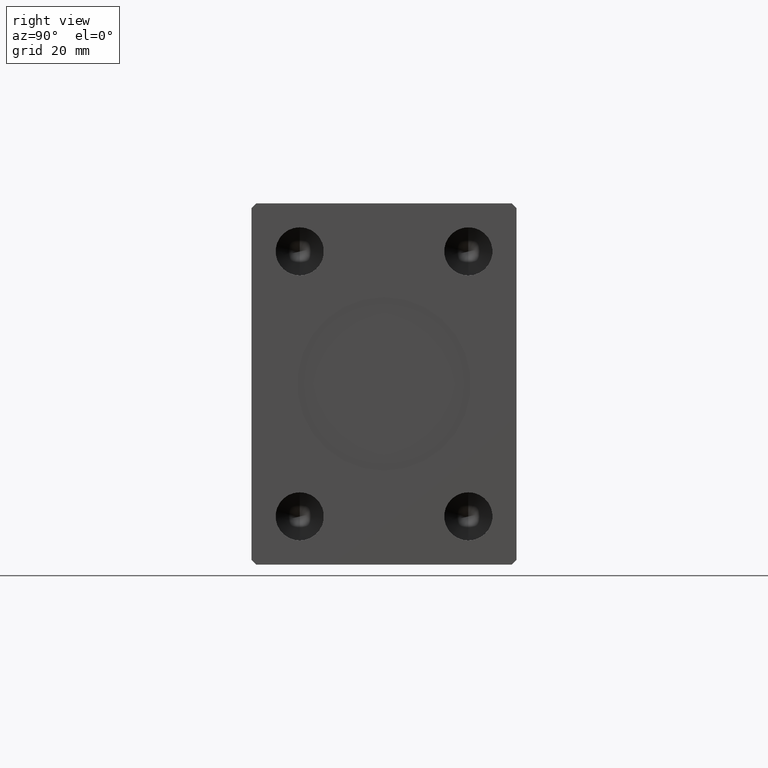
[diagram: clean part render]
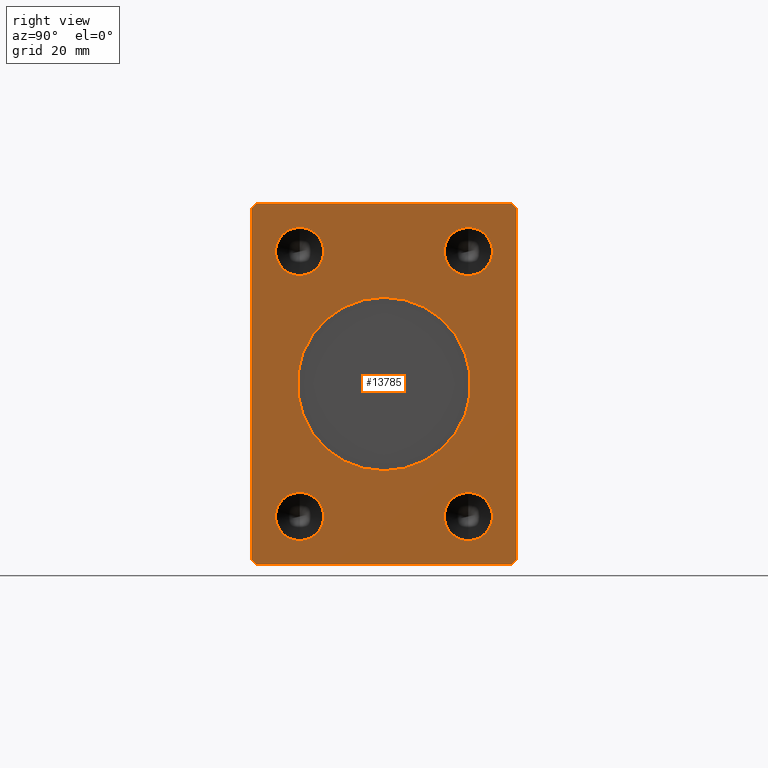
[diagram: same view with one face highlighted and labeled with its STEP entity id]
A machine part, right view. The second image highlights one B-rep face of the part: STEP entity #13785.
In plain terms, the highlighted planar face has unit normal (1, 0, 0).
Its self-contained STEP definition (entity closure, byte-faithful):
#146 = VERTEX_POINT ( 'NONE', #12186 ) ;
#601 = CARTESIAN_POINT ( 'NONE',  ( 85.00000000000000000, -17.50000000000000000, 27.50000000000000355 ) ) ;
#686 = CIRCLE ( 'NONE', #44467, 4.999999999999997335 ) ;
#724 = CIRCLE ( 'NONE', #30123, 4.999999999999997335 ) ;
#1124 = AXIS2_PLACEMENT_3D ( 'NONE', #5614, #19289, #33015 ) ;
#1427 = ORIENTED_EDGE ( 'NONE', *, *, #10473, .T. ) ;
#1455 = CARTESIAN_POINT ( 'NONE',  ( 85.00000000000000000, -27.50000000000000355, -36.49999999999998579 ) ) ;
#1551 = DIRECTION ( 'NONE',  ( 1.000000000000000000, -0.000000000000000000, -0.000000000000000000 ) ) ;
#1936 = EDGE_CURVE ( 'NONE', #16769, #146, #2457, .T. ) ;
#2001 = AXIS2_PLACEMENT_3D ( 'NONE', #37810, #13987, #34437 ) ;
#2023 = ORIENTED_EDGE ( 'NONE', *, *, #1936, .T. ) ;
#2457 = LINE ( 'NONE', #14893, #8157 ) ;
#2581 = VECTOR ( 'NONE', #11593, 1000.000000000000000 ) ;
#2656 = ORIENTED_EDGE ( 'NONE', *, *, #36268, .T. ) ;
#2972 = EDGE_LOOP ( 'NONE', ( #32014, #35346 ) ) ;
#3565 = CARTESIAN_POINT ( 'NONE',  ( 85.00000000000000000, -17.50000000000000000, -32.49999999999999289 ) ) ;
#3633 = AXIS2_PLACEMENT_3D ( 'NONE', #5782, #8930, #22628 ) ;
#3941 = ORIENTED_EDGE ( 'NONE', *, *, #23956, .F. ) ;
#4349 = DIRECTION ( 'NONE',  ( 0.000000000000000000, 1.000000000000000000, 0.000000000000000000 ) ) ;
#4419 = DIRECTION ( 'NONE',  ( 0.000000000000000000, 0.000000000000000000, -1.000000000000000000 ) ) ;
#4610 = DIRECTION ( 'NONE',  ( 1.000000000000000000, -0.000000000000000000, -0.000000000000000000 ) ) ;
#4640 = CARTESIAN_POINT ( 'NONE',  ( 85.00000000000000000, 0.000000000000000000, 0.000000000000000000 ) ) ;
#5162 = ORIENTED_EDGE ( 'NONE', *, *, #12475, .F. ) ;
#5614 = CARTESIAN_POINT ( 'NONE',  ( 85.00000000000000000, -17.50000000000000000, -27.49999999999999645 ) ) ;
#5782 = CARTESIAN_POINT ( 'NONE',  ( 85.00000000000000000, 0.000000000000000000, 0.000000000000000000 ) ) ;
#6263 = VERTEX_POINT ( 'NONE', #23674 ) ;
#6336 = ORIENTED_EDGE ( 'NONE', *, *, #12994, .T. ) ;
#6706 = VERTEX_POINT ( 'NONE', #37539 ) ;
#7181 = DIRECTION ( 'NONE',  ( 0.000000000000000000, -0.7071067811865474617, -0.7071067811865474617 ) ) ;
#7211 = CIRCLE ( 'NONE', #20100, 4.999999999999997335 ) ;
#7369 = VERTEX_POINT ( 'NONE', #44402 ) ;
#7661 = CIRCLE ( 'NONE', #32753, 18.00000000000000000 ) ;
#7872 = VERTEX_POINT ( 'NONE', #3565 ) ;
#8157 = VECTOR ( 'NONE', #28599, 1000.000000000000114 ) ;
#8344 = CARTESIAN_POINT ( 'NONE',  ( 85.00000000000000000, -17.50000000000000000, 27.50000000000000355 ) ) ;
#8419 = ORIENTED_EDGE ( 'NONE', *, *, #14463, .F. ) ;
#8561 = DIRECTION ( 'NONE',  ( 0.000000000000000000, 0.000000000000000000, -1.000000000000000000 ) ) ;
#8930 = DIRECTION ( 'NONE',  ( 1.000000000000000000, 0.000000000000000000, 0.000000000000000000 ) ) ;
#8994 = ORIENTED_EDGE ( 'NONE', *, *, #17104, .T. ) ;
#9059 = EDGE_LOOP ( 'NONE', ( #8994, #6336, #2656, #27027, #1427, #29825, #2023, #32541 ) ) ;
#9611 = CARTESIAN_POINT ( 'NONE',  ( 85.00000000000000000, 27.50000000000000355, 36.50000000000000711 ) ) ;
#10133 = CARTESIAN_POINT ( 'NONE',  ( 85.00000000000000000, 17.50000000000000000, -32.49999999999998579 ) ) ;
#10299 = CARTESIAN_POINT ( 'NONE',  ( 85.00000000000000000, -27.50000000000000711, 36.50000000000000711 ) ) ;
#10473 = EDGE_CURVE ( 'NONE', #24877, #7369, #16402, .T. ) ;
#11270 = VERTEX_POINT ( 'NONE', #27415 ) ;
#11379 = FACE_BOUND ( 'NONE', #33886, .T. ) ;
#11541 = EDGE_CURVE ( 'NONE', #37225, #24877, #44003, .T. ) ;
#11593 = DIRECTION ( 'NONE',  ( 0.000000000000000000, -1.000000000000000000, 0.000000000000000000 ) ) ;
#11932 = DIRECTION ( 'NONE',  ( 1.000000000000000000, -0.000000000000000000, -0.000000000000000000 ) ) ;
#12186 = CARTESIAN_POINT ( 'NONE',  ( 85.00000000000000000, 27.50000000000000711, -36.49999999999999289 ) ) ;
#12475 = EDGE_CURVE ( 'NONE', #22458, #7872, #38443, .T. ) ;
#12823 = CARTESIAN_POINT ( 'NONE',  ( 85.00000000000000000, -27.50000000000000355, -36.49999999999998579 ) ) ;
#12994 = EDGE_CURVE ( 'NONE', #42875, #6706, #15393, .T. ) ;
#13785 = ADVANCED_FACE ( 'NONE', ( #43029, #11379, #39445, #35846, #25080, #32264 ), #42807, .T. ) ;
#13987 = DIRECTION ( 'NONE',  ( 1.000000000000000000, -0.000000000000000000, -0.000000000000000000 ) ) ;
#14301 = DIRECTION ( 'NONE',  ( 1.000000000000000000, -0.000000000000000000, -0.000000000000000000 ) ) ;
#14463 = EDGE_CURVE ( 'NONE', #35029, #17726, #7661, .T. ) ;
#14893 = CARTESIAN_POINT ( 'NONE',  ( 85.00000000000000000, 26.50000000000000711, -37.49999999999999289 ) ) ;
#15393 = LINE ( 'NONE', #42799, #2581 ) ;
#15462 = CARTESIAN_POINT ( 'NONE',  ( 85.00000000000000000, -27.50000000000000711, 36.50000000000000711 ) ) ;
#16140 = ORIENTED_EDGE ( 'NONE', *, *, #29562, .F. ) ;
#16161 = DIRECTION ( 'NONE',  ( 0.000000000000000000, 0.000000000000000000, -1.000000000000000000 ) ) ;
#16402 = LINE ( 'NONE', #12823, #24045 ) ;
#16485 = VERTEX_POINT ( 'NONE', #10133 ) ;
#16769 = VERTEX_POINT ( 'NONE', #42467 ) ;
#16881 = DIRECTION ( 'NONE',  ( 1.000000000000000000, -0.000000000000000000, -0.000000000000000000 ) ) ;
#17104 = EDGE_CURVE ( 'NONE', #33406, #42875, #26453, .T. ) ;
#17164 = CIRCLE ( 'NONE', #36537, 4.999999999999993783 ) ;
#17726 = VERTEX_POINT ( 'NONE', #31773 ) ;
#18148 = CARTESIAN_POINT ( 'NONE',  ( 85.00000000000000000, -17.50000000000000000, 32.50000000000000000 ) ) ;
#18291 = DIRECTION ( 'NONE',  ( 0.000000000000000000, 0.000000000000000000, -1.000000000000000000 ) ) ;
#18540 = DIRECTION ( 'NONE',  ( 1.000000000000000000, 0.000000000000000000, 0.000000000000000000 ) ) ;
#19289 = DIRECTION ( 'NONE',  ( 1.000000000000000000, -0.000000000000000000, -0.000000000000000000 ) ) ;
#19899 = CIRCLE ( 'NONE', #2001, 4.999999999999997335 ) ;
#20100 = AXIS2_PLACEMENT_3D ( 'NONE', #601, #14301, #28000 ) ;
#20433 = DIRECTION ( 'NONE',  ( 0.000000000000000000, 0.7071067811865451302, -0.7071067811865500152 ) ) ;
#20459 = DIRECTION ( 'NONE',  ( 0.000000000000000000, 0.000000000000000000, -1.000000000000000000 ) ) ;
#21080 = CARTESIAN_POINT ( 'NONE',  ( 85.00000000000000000, 27.50000000000000355, 36.50000000000000711 ) ) ;
#21585 = EDGE_LOOP ( 'NONE', ( #8419, #37687 ) ) ;
#21664 = VERTEX_POINT ( 'NONE', #40347 ) ;
#22025 = EDGE_CURVE ( 'NONE', #11270, #36920, #19899, .T. ) ;
#22026 = DIRECTION ( 'NONE',  ( 1.000000000000000000, -0.000000000000000000, -0.000000000000000000 ) ) ;
#22109 = AXIS2_PLACEMENT_3D ( 'NONE', #40223, #11932, #43149 ) ;
#22349 = CARTESIAN_POINT ( 'NONE',  ( 85.00000000000000000, 26.50000000000000355, 37.50000000000000711 ) ) ;
#22458 = VERTEX_POINT ( 'NONE', #27547 ) ;
#22628 = DIRECTION ( 'NONE',  ( 0.000000000000000000, 0.000000000000000000, -1.000000000000000000 ) ) ;
#22666 = EDGE_LOOP ( 'NONE', ( #39607, #16140 ) ) ;
#22919 = CARTESIAN_POINT ( 'NONE',  ( 85.00000000000000000, 0.000000000000000000, 0.000000000000000000 ) ) ;
#23674 = CARTESIAN_POINT ( 'NONE',  ( 85.00000000000000000, 17.50000000000000000, -22.49999999999999645 ) ) ;
#23956 = EDGE_CURVE ( 'NONE', #7872, #22458, #41485, .T. ) ;
#24045 = VECTOR ( 'NONE', #20433, 1000.000000000000114 ) ;
#24877 = VERTEX_POINT ( 'NONE', #1455 ) ;
#24911 = CARTESIAN_POINT ( 'NONE',  ( 85.00000000000000000, 17.50000000000000000, -27.49999999999999289 ) ) ;
#25080 = FACE_BOUND ( 'NONE', #22666, .T. ) ;
#26408 = CARTESIAN_POINT ( 'NONE',  ( 85.00000000000000000, 27.50000000000000711, -36.49999999999999289 ) ) ;
#26453 = LINE ( 'NONE', #9611, #44317 ) ;
#27027 = ORIENTED_EDGE ( 'NONE', *, *, #11541, .T. ) ;
#27205 = VECTOR ( 'NONE', #7181, 1000.000000000000114 ) ;
#27415 = CARTESIAN_POINT ( 'NONE',  ( 85.00000000000000000, 17.50000000000000000, 32.50000000000000000 ) ) ;
#27547 = CARTESIAN_POINT ( 'NONE',  ( 85.00000000000000000, -17.50000000000000000, -22.50000000000000000 ) ) ;
#27691 = AXIS2_PLACEMENT_3D ( 'NONE', #4640, #18540, #4419 ) ;
#27740 = EDGE_CURVE ( 'NONE', #6263, #16485, #17164, .T. ) ;
#27827 = LINE ( 'NONE', #38887, #27205 ) ;
#28000 = DIRECTION ( 'NONE',  ( 0.000000000000000000, 0.000000000000000000, -1.000000000000000000 ) ) ;
#28150 = LINE ( 'NONE', #35116, #39365 ) ;
#28222 = ORIENTED_EDGE ( 'NONE', *, *, #41253, .F. ) ;
#28599 = DIRECTION ( 'NONE',  ( 0.000000000000000000, 0.7071067811865474617, 0.7071067811865474617 ) ) ;
#28691 = CIRCLE ( 'NONE', #34425, 4.999999999999993783 ) ;
#28710 = CARTESIAN_POINT ( 'NONE',  ( 85.00000000000000000, 0.000000000000000000, -18.00000000000000000 ) ) ;
#29157 = EDGE_CURVE ( 'NONE', #16485, #6263, #28691, .T. ) ;
#29562 = EDGE_CURVE ( 'NONE', #32651, #21664, #7211, .T. ) ;
#29825 = ORIENTED_EDGE ( 'NONE', *, *, #34545, .T. ) ;
#30123 = AXIS2_PLACEMENT_3D ( 'NONE', #8344, #22026, #8561 ) ;
#30498 = ORIENTED_EDGE ( 'NONE', *, *, #22025, .F. ) ;
#31773 = CARTESIAN_POINT ( 'NONE',  ( 85.00000000000000000, 2.204364238465235428E-15, 18.00000000000000000 ) ) ;
#32014 = ORIENTED_EDGE ( 'NONE', *, *, #29157, .F. ) ;
#32264 = FACE_OUTER_BOUND ( 'NONE', #9059, .T. ) ;
#32324 = DIRECTION ( 'NONE',  ( 0.000000000000000000, 0.000000000000000000, -1.000000000000000000 ) ) ;
#32541 = ORIENTED_EDGE ( 'NONE', *, *, #40080, .T. ) ;
#32651 = VERTEX_POINT ( 'NONE', #18148 ) ;
#32753 = AXIS2_PLACEMENT_3D ( 'NONE', #22919, #33251, #16161 ) ;
#33015 = DIRECTION ( 'NONE',  ( 0.000000000000000000, 0.000000000000000000, -1.000000000000000000 ) ) ;
#33251 = DIRECTION ( 'NONE',  ( 1.000000000000000000, 0.000000000000000000, 0.000000000000000000 ) ) ;
#33406 = VERTEX_POINT ( 'NONE', #21080 ) ;
#33886 = EDGE_LOOP ( 'NONE', ( #28222, #30498 ) ) ;
#34425 = AXIS2_PLACEMENT_3D ( 'NONE', #24911, #1551, #32324 ) ;
#34437 = DIRECTION ( 'NONE',  ( 0.000000000000000000, 0.000000000000000000, -1.000000000000000000 ) ) ;
#34466 = CARTESIAN_POINT ( 'NONE',  ( 85.00000000000000000, 17.50000000000000000, 22.50000000000000355 ) ) ;
#34545 = EDGE_CURVE ( 'NONE', #7369, #16769, #28150, .T. ) ;
#34838 = CARTESIAN_POINT ( 'NONE',  ( 85.00000000000000000, 17.50000000000000000, -27.49999999999999289 ) ) ;
#35029 = VERTEX_POINT ( 'NONE', #28710 ) ;
#35116 = CARTESIAN_POINT ( 'NONE',  ( 85.00000000000000000, -26.50000000000000355, -37.49999999999999289 ) ) ;
#35346 = ORIENTED_EDGE ( 'NONE', *, *, #27740, .F. ) ;
#35372 = CARTESIAN_POINT ( 'NONE',  ( 85.00000000000000000, 17.50000000000000000, 27.50000000000000000 ) ) ;
#35846 = FACE_BOUND ( 'NONE', #2972, .T. ) ;
#36268 = EDGE_CURVE ( 'NONE', #6706, #37225, #27827, .T. ) ;
#36537 = AXIS2_PLACEMENT_3D ( 'NONE', #34838, #16881, #20459 ) ;
#36920 = VERTEX_POINT ( 'NONE', #34466 ) ;
#37011 = DIRECTION ( 'NONE',  ( 0.000000000000000000, -0.7071067811865474617, 0.7071067811865474617 ) ) ;
#37225 = VERTEX_POINT ( 'NONE', #15462 ) ;
#37337 = CIRCLE ( 'NONE', #3633, 18.00000000000000000 ) ;
#37539 = CARTESIAN_POINT ( 'NONE',  ( 85.00000000000000000, -26.50000000000000711, 37.50000000000000711 ) ) ;
#37687 = ORIENTED_EDGE ( 'NONE', *, *, #43465, .F. ) ;
#37707 = VECTOR ( 'NONE', #40853, 1000.000000000000000 ) ;
#37810 = CARTESIAN_POINT ( 'NONE',  ( 85.00000000000000000, 17.50000000000000000, 27.50000000000000000 ) ) ;
#37907 = EDGE_LOOP ( 'NONE', ( #3941, #5162 ) ) ;
#38443 = CIRCLE ( 'NONE', #1124, 4.999999999999997335 ) ;
#38610 = EDGE_CURVE ( 'NONE', #21664, #32651, #724, .T. ) ;
#38887 = CARTESIAN_POINT ( 'NONE',  ( 85.00000000000000000, -26.50000000000000711, 37.50000000000000711 ) ) ;
#39365 = VECTOR ( 'NONE', #4349, 1000.000000000000000 ) ;
#39445 = FACE_BOUND ( 'NONE', #37907, .T. ) ;
#39607 = ORIENTED_EDGE ( 'NONE', *, *, #38610, .F. ) ;
#40080 = EDGE_CURVE ( 'NONE', #146, #33406, #43483, .T. ) ;
#40115 = DIRECTION ( 'NONE',  ( 0.000000000000000000, -4.752667057470704875E-17, 1.000000000000000000 ) ) ;
#40223 = CARTESIAN_POINT ( 'NONE',  ( 85.00000000000000000, -17.50000000000000000, -27.49999999999999645 ) ) ;
#40347 = CARTESIAN_POINT ( 'NONE',  ( 85.00000000000000000, -17.50000000000000000, 22.50000000000000711 ) ) ;
#40853 = DIRECTION ( 'NONE',  ( 0.000000000000000000, 4.752667057470705491E-17, -1.000000000000000000 ) ) ;
#41253 = EDGE_CURVE ( 'NONE', #36920, #11270, #686, .T. ) ;
#41485 = CIRCLE ( 'NONE', #22109, 4.999999999999997335 ) ;
#42467 = CARTESIAN_POINT ( 'NONE',  ( 85.00000000000000000, 26.50000000000000711, -37.49999999999999289 ) ) ;
#42799 = CARTESIAN_POINT ( 'NONE',  ( 85.00000000000000000, 26.50000000000000355, 37.50000000000000711 ) ) ;
#42807 = PLANE ( 'NONE',  #27691 ) ;
#42875 = VERTEX_POINT ( 'NONE', #22349 ) ;
#42980 = VECTOR ( 'NONE', #40115, 1000.000000000000000 ) ;
#43029 = FACE_BOUND ( 'NONE', #21585, .T. ) ;
#43149 = DIRECTION ( 'NONE',  ( 0.000000000000000000, 0.000000000000000000, -1.000000000000000000 ) ) ;
#43465 = EDGE_CURVE ( 'NONE', #17726, #35029, #37337, .T. ) ;
#43483 = LINE ( 'NONE', #26408, #42980 ) ;
#44003 = LINE ( 'NONE', #10299, #37707 ) ;
#44317 = VECTOR ( 'NONE', #37011, 1000.000000000000114 ) ;
#44402 = CARTESIAN_POINT ( 'NONE',  ( 85.00000000000000000, -26.50000000000000355, -37.49999999999999289 ) ) ;
#44467 = AXIS2_PLACEMENT_3D ( 'NONE', #35372, #4610, #18291 ) ;